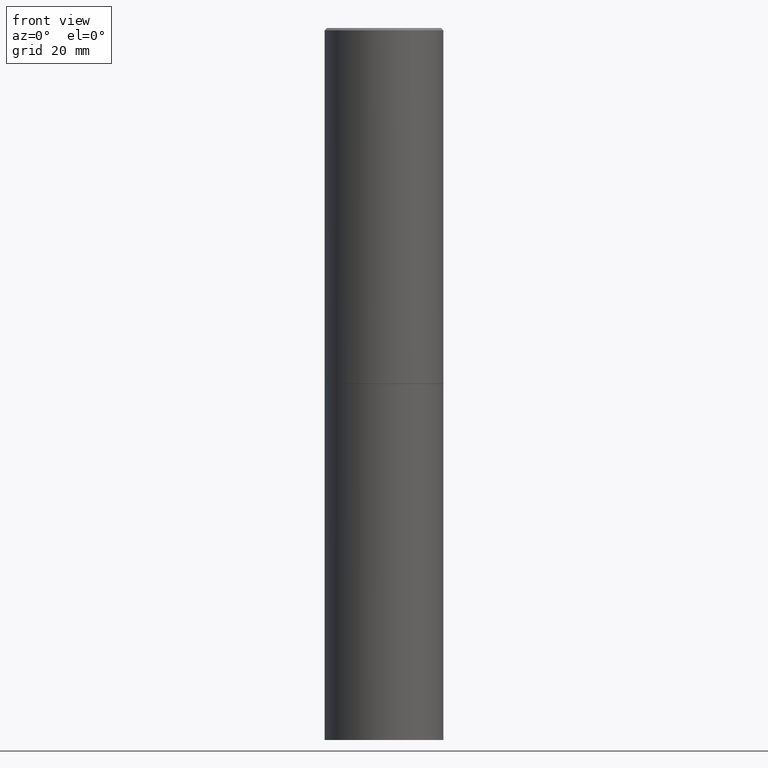
[diagram: clean part render]
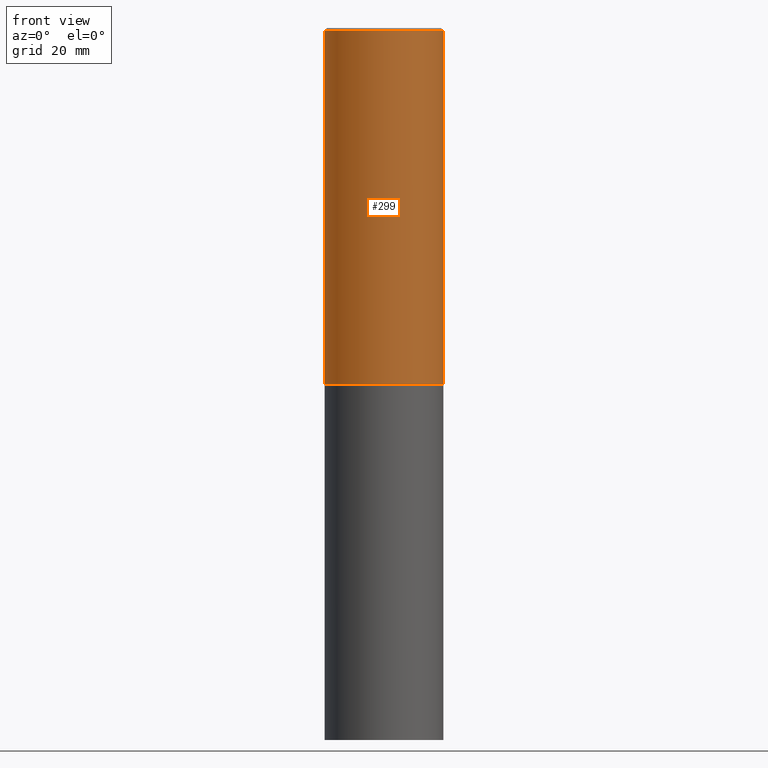
[diagram: same view with one face highlighted and labeled with its STEP entity id]
A machine part, front view. The second image highlights one B-rep face of the part: STEP entity #299.
In plain terms, the highlighted cylindrical surface (partial cylindrical patch) has radius 12.5006 mm, axis along (-0, 0, 1).
Its self-contained STEP definition (entity closure, byte-faithful):
#6 = VECTOR ( 'NONE', #357, 39.37007874015748143 ) ;
#12 = ORIENTED_EDGE ( 'NONE', *, *, #25, .F. ) ;
#13 = DIRECTION ( 'NONE',  ( -2.445468806185136597E-29, 3.491481338843145583E-15, 1.000000000000000000 ) ) ;
#16 = DIRECTION ( 'NONE',  ( 1.000000000000000000, -6.982962677686265922E-15, 4.876176775795935793E-29 ) ) ;
#21 = CARTESIAN_POINT ( 'NONE',  ( -0.4921499999999999764, -1.690881473276754954E-15, -2.951700000000000212 ) ) ;
#25 = EDGE_CURVE ( 'NONE', #348, #356, #341, .T. ) ;
#54 = EDGE_CURVE ( 'NONE', #163, #348, #326, .T. ) ;
#68 = DIRECTION ( 'NONE',  ( 1.000000000000000000, -6.982962677686265922E-15, 0.000000000000000000 ) ) ;
#96 = FACE_OUTER_BOUND ( 'NONE', #144, .T. ) ;
#121 = CARTESIAN_POINT ( 'NONE',  ( 0.000000000000000000, 0.000000000000000000, 0.000000000000000000 ) ) ;
#129 = CIRCLE ( 'NONE', #205, 0.4921499999999999764 ) ;
#138 = EDGE_CURVE ( 'NONE', #257, #356, #291, .T. ) ;
#144 = EDGE_LOOP ( 'NONE', ( #190, #202, #292, #12 ) ) ;
#148 = CARTESIAN_POINT ( 'NONE',  ( -0.4921499999999998098, 3.496936074043331714E-15, -2.420853904668950949E-29 ) ) ;
#152 = DIRECTION ( 'NONE',  ( -2.445468806185136597E-29, 3.491481338843145583E-15, 1.000000000000000000 ) ) ;
#163 = VERTEX_POINT ( 'NONE', #21 ) ;
#168 = CARTESIAN_POINT ( 'NONE',  ( -0.4921499999999996988, 3.366835455046430506E-15, -0.02000000000000010797 ) ) ;
#179 = DIRECTION ( 'NONE',  ( -2.445468806185136597E-29, 3.491481338843145583E-15, 1.000000000000000000 ) ) ;
#180 = AXIS2_PLACEMENT_3D ( 'NONE', #207, #152, #273 ) ;
#190 = ORIENTED_EDGE ( 'NONE', *, *, #54, .F. ) ;
#202 = ORIENTED_EDGE ( 'NONE', *, *, #279, .T. ) ;
#205 = AXIS2_PLACEMENT_3D ( 'NONE', #296, #13, #68 ) ;
#207 = CARTESIAN_POINT ( 'NONE',  ( 4.890937612370299433E-31, -6.982962677686328587E-17, -0.02000000000000010797 ) ) ;
#218 = CARTESIAN_POINT ( 'NONE',  ( 0.4921499999999999764, -1.374247054968660936E-14, -2.951700000000000212 ) ) ;
#236 = CARTESIAN_POINT ( 'NONE',  ( 0.4921499999999998098, -3.436665081823294593E-15, 2.399810400207968762E-29 ) ) ;
#251 = VECTOR ( 'NONE', #271, 39.37007874015748143 ) ;
#257 = VERTEX_POINT ( 'NONE', #218 ) ;
#271 = DIRECTION ( 'NONE',  ( -2.445468806185136877E-29, 3.491481338843145188E-15, 1.000000000000000000 ) ) ;
#273 = DIRECTION ( 'NONE',  ( 1.000000000000000000, -6.982962677686265922E-15, 0.000000000000000000 ) ) ;
#279 = EDGE_CURVE ( 'NONE', #163, #257, #129, .T. ) ;
#286 = CARTESIAN_POINT ( 'NONE',  ( 0.4921499999999996988, -3.446223716380120377E-15, -0.02000000000000010797 ) ) ;
#291 = LINE ( 'NONE', #236, #6 ) ;
#292 = ORIENTED_EDGE ( 'NONE', *, *, #138, .T. ) ;
#296 = CARTESIAN_POINT ( 'NONE',  ( 7.218290275216666916E-29, -1.030580546786331359E-14, -2.951700000000000212 ) ) ;
#299 = ADVANCED_FACE ( 'NONE', ( #96 ), #322, .T. ) ;
#301 = AXIS2_PLACEMENT_3D ( 'NONE', #121, #179, #16 ) ;
#322 = CYLINDRICAL_SURFACE ( 'NONE', #301, 0.4921499999999998098 ) ;
#326 = LINE ( 'NONE', #148, #251 ) ;
#341 = CIRCLE ( 'NONE', #180, 0.4921499999999996988 ) ;
#348 = VERTEX_POINT ( 'NONE', #168 ) ;
#356 = VERTEX_POINT ( 'NONE', #286 ) ;
#357 = DIRECTION ( 'NONE',  ( -2.445468806185136877E-29, 3.491481338843145188E-15, 1.000000000000000000 ) ) ;